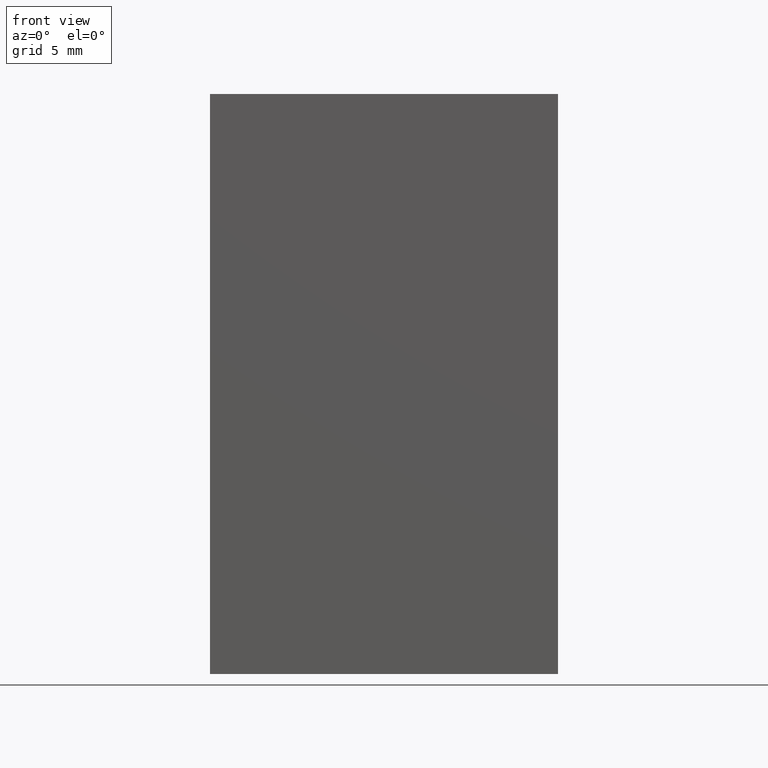
[diagram: clean part render]
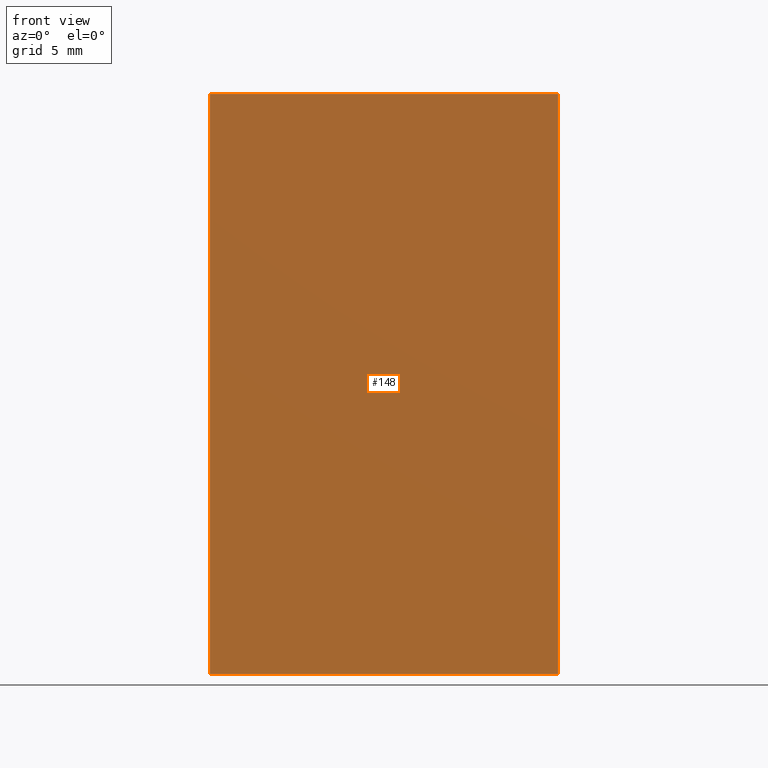
[diagram: same view with one face highlighted and labeled with its STEP entity id]
A machine part, front view. The second image highlights one B-rep face of the part: STEP entity #148.
In plain terms, the highlighted planar face has unit normal (0, -1, 0).
Its self-contained STEP definition (entity closure, byte-faithful):
#22=FACE_OUTER_BOUND('',#30,.T.);
#30=EDGE_LOOP('',(#124,#125,#126,#127));
#33=LINE('',#223,#51);
#40=LINE('',#236,#58);
#48=LINE('',#252,#66);
#49=LINE('',#254,#67);
#51=VECTOR('',#186,10.);
#58=VECTOR('',#195,10.);
#66=VECTOR('',#211,10.);
#67=VECTOR('',#214,10.);
#68=VERTEX_POINT('',#219);
#70=VERTEX_POINT('',#222);
#74=VERTEX_POINT('',#232);
#79=VERTEX_POINT('',#250);
#81=EDGE_CURVE('',#70,#68,#33,.T.);
#88=EDGE_CURVE('',#74,#70,#40,.T.);
#96=EDGE_CURVE('',#68,#79,#48,.T.);
#97=EDGE_CURVE('',#79,#74,#49,.T.);
#124=ORIENTED_EDGE('',*,*,#97,.T.);
#125=ORIENTED_EDGE('',*,*,#88,.T.);
#126=ORIENTED_EDGE('',*,*,#81,.T.);
#127=ORIENTED_EDGE('',*,*,#96,.T.);
#140=PLANE('',#179);
#148=ADVANCED_FACE('',(#22),#140,.T.);
#179=AXIS2_PLACEMENT_3D('',#253,#212,#213);
#186=DIRECTION('',(1.,0.,0.));
#195=DIRECTION('',(0.,0.,-1.));
#211=DIRECTION('',(0.,0.,1.));
#212=DIRECTION('center_axis',(0.,-1.,0.));
#213=DIRECTION('ref_axis',(0.,0.,-1.));
#214=DIRECTION('',(-1.,0.,0.));
#219=CARTESIAN_POINT('',(7.5,-6.,-12.5));
#222=CARTESIAN_POINT('',(-7.5,-6.,-12.5));
#223=CARTESIAN_POINT('',(7.5,-6.,-12.5));
#232=CARTESIAN_POINT('',(-7.5,-6.,12.5));
#236=CARTESIAN_POINT('',(-7.5,-6.,0.));
#250=CARTESIAN_POINT('',(7.5,-6.,12.5));
#252=CARTESIAN_POINT('',(7.5,-6.,0.));
#253=CARTESIAN_POINT('Origin',(7.5,-6.,0.));
#254=CARTESIAN_POINT('',(7.5,-6.,12.5));